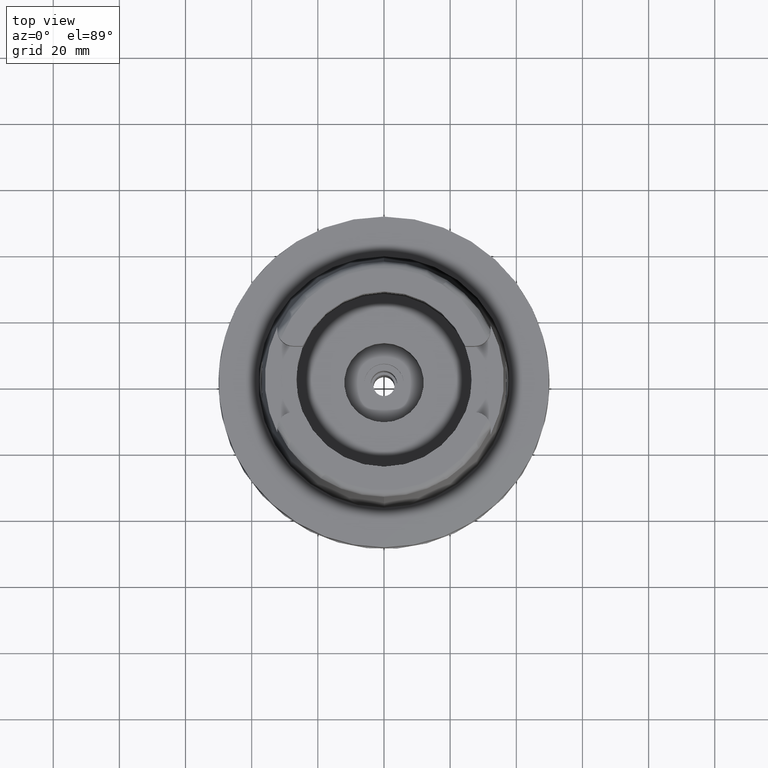
[diagram: clean part render]
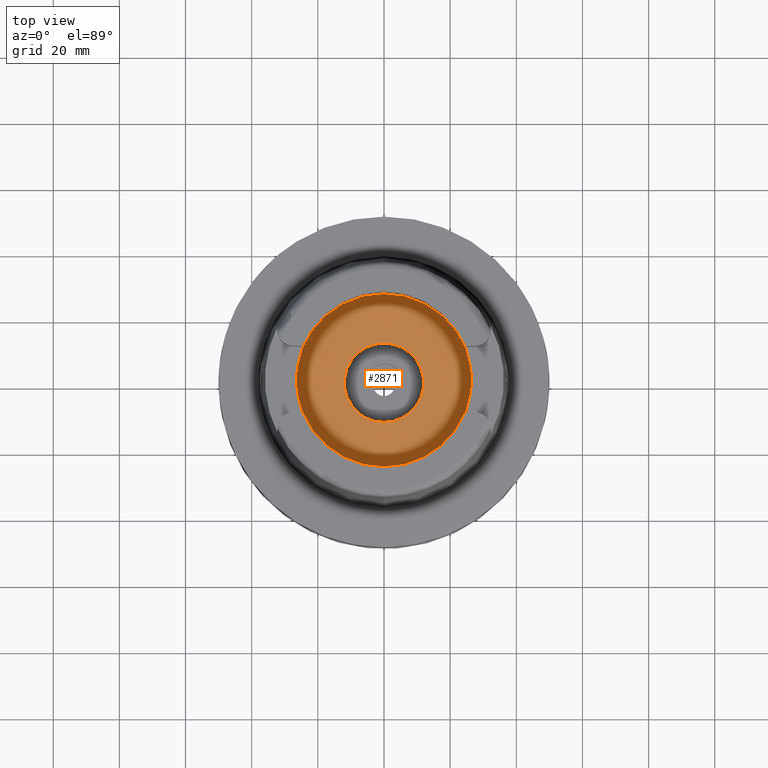
[diagram: same view with one face highlighted and labeled with its STEP entity id]
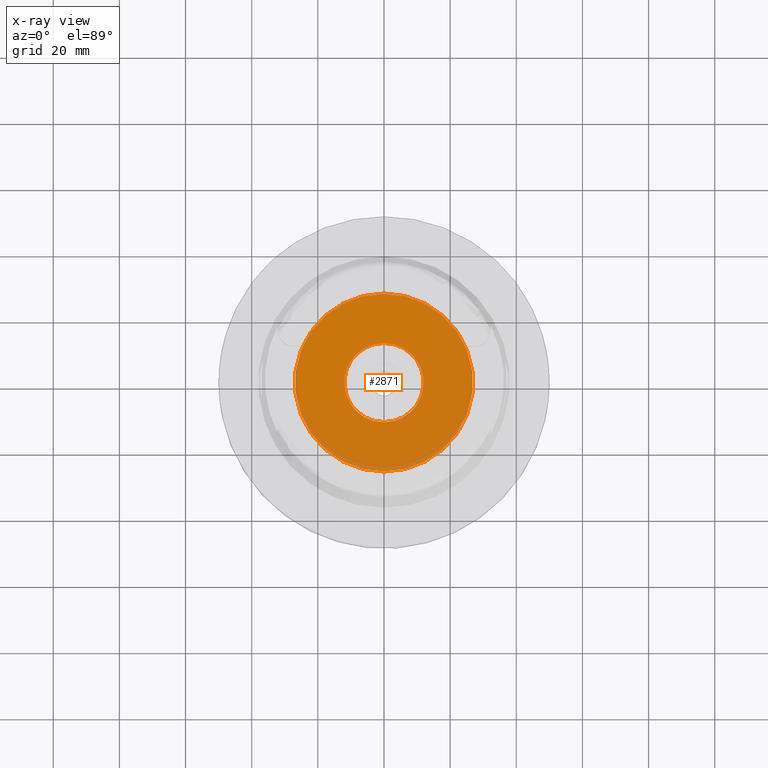
[diagram: x-ray of the same camera — body ghosted, the highlighted face saturated]
A machine part, top view. The second image highlights one B-rep face of the part: STEP entity #2871.
The next image is the same camera in x-ray: the body ghosted, the highlighted face saturated — about 5% of this face is hidden behind the body in this view.
In plain terms, the highlighted planar face has unit normal (0, 0, 1).
Its self-contained STEP definition (entity closure, byte-faithful):
#26 = DIRECTION ( 'NONE',  ( 0.0000000000000000000, 0.0000000000000000000, 1.000000000000000000 ) ) ;
#242 = DIRECTION ( 'NONE',  ( 0.0000000000000000000, 0.0000000000000000000, 1.000000000000000000 ) ) ;
#260 = AXIS2_PLACEMENT_3D ( 'NONE', #331, #5072, #3546 ) ;
#331 = CARTESIAN_POINT ( 'NONE',  ( 0.0000000000000000000, 0.0000000000000000000, -12.44999999999999929 ) ) ;
#699 = CIRCLE ( 'NONE', #3496, 26.89999999999999858 ) ;
#966 = CARTESIAN_POINT ( 'NONE',  ( 0.0000000000000000000, 0.0000000000000000000, -12.44999999999999929 ) ) ;
#1067 = CIRCLE ( 'NONE', #2275, 26.89999999999999858 ) ;
#1184 = CARTESIAN_POINT ( 'NONE',  ( 0.0000000000000000000, 0.0000000000000000000, -12.44999999999999929 ) ) ;
#1189 = DIRECTION ( 'NONE',  ( 0.0000000000000000000, -1.000000000000000000, 0.0000000000000000000 ) ) ;
#1204 = DIRECTION ( 'NONE',  ( 0.0000000000000000000, 0.0000000000000000000, -1.000000000000000000 ) ) ;
#1439 = FACE_BOUND ( 'NONE', #1574, .T. ) ;
#1453 = EDGE_LOOP ( 'NONE', ( #4499, #4513 ) ) ;
#1504 = ORIENTED_EDGE ( 'NONE', *, *, #1558, .F. ) ;
#1527 = EDGE_CURVE ( 'NONE', #2421, #3211, #1067, .T. ) ;
#1531 = ORIENTED_EDGE ( 'NONE', *, *, #4984, .F. ) ;
#1558 = EDGE_CURVE ( 'NONE', #3680, #5738, #2569, .T. ) ;
#1574 = EDGE_LOOP ( 'NONE', ( #1531, #1504 ) ) ;
#1728 = DIRECTION ( 'NONE',  ( 0.0000000000000000000, 0.0000000000000000000, -1.000000000000000000 ) ) ;
#1911 = PLANE ( 'NONE',  #2213 ) ;
#2204 = CARTESIAN_POINT ( 'NONE',  ( 0.0000000000000000000, 12.00000000000000000, -12.44999999999999929 ) ) ;
#2213 = AXIS2_PLACEMENT_3D ( 'NONE', #966, #26, #4745 ) ;
#2275 = AXIS2_PLACEMENT_3D ( 'NONE', #3189, #1204, #3574 ) ;
#2421 = VERTEX_POINT ( 'NONE', #3561 ) ;
#2569 = CIRCLE ( 'NONE', #260, 12.00000000000000000 ) ;
#2839 = CARTESIAN_POINT ( 'NONE',  ( 0.0000000000000000000, -26.89999999999999858, -12.44999999999999929 ) ) ;
#2871 = ADVANCED_FACE ( 'NONE', ( #5234, #1439 ), #1911, .T. ) ;
#3066 = DIRECTION ( 'NONE',  ( 0.0000000000000000000, 1.000000000000000000, 0.0000000000000000000 ) ) ;
#3189 = CARTESIAN_POINT ( 'NONE',  ( 0.0000000000000000000, 0.0000000000000000000, -12.44999999999999929 ) ) ;
#3211 = VERTEX_POINT ( 'NONE', #2839 ) ;
#3496 = AXIS2_PLACEMENT_3D ( 'NONE', #4501, #1728, #1189 ) ;
#3546 = DIRECTION ( 'NONE',  ( 0.0000000000000000000, -1.000000000000000000, 0.0000000000000000000 ) ) ;
#3561 = CARTESIAN_POINT ( 'NONE',  ( 0.0000000000000000000, 26.89999999999999858, -12.44999999999999929 ) ) ;
#3574 = DIRECTION ( 'NONE',  ( 0.0000000000000000000, 1.000000000000000000, 0.0000000000000000000 ) ) ;
#3680 = VERTEX_POINT ( 'NONE', #3755 ) ;
#3755 = CARTESIAN_POINT ( 'NONE',  ( 0.0000000000000000000, -12.00000000000000000, -12.44999999999999929 ) ) ;
#3878 = EDGE_CURVE ( 'NONE', #3211, #2421, #699, .T. ) ;
#4499 = ORIENTED_EDGE ( 'NONE', *, *, #1527, .F. ) ;
#4501 = CARTESIAN_POINT ( 'NONE',  ( 0.0000000000000000000, 0.0000000000000000000, -12.44999999999999929 ) ) ;
#4513 = ORIENTED_EDGE ( 'NONE', *, *, #3878, .F. ) ;
#4745 = DIRECTION ( 'NONE',  ( 1.000000000000000000, 0.0000000000000000000, 0.0000000000000000000 ) ) ;
#4984 = EDGE_CURVE ( 'NONE', #5738, #3680, #6094, .T. ) ;
#5072 = DIRECTION ( 'NONE',  ( 0.0000000000000000000, 0.0000000000000000000, 1.000000000000000000 ) ) ;
#5234 = FACE_OUTER_BOUND ( 'NONE', #1453, .T. ) ;
#5695 = AXIS2_PLACEMENT_3D ( 'NONE', #1184, #242, #3066 ) ;
#5738 = VERTEX_POINT ( 'NONE', #2204 ) ;
#6094 = CIRCLE ( 'NONE', #5695, 12.00000000000000000 ) ;